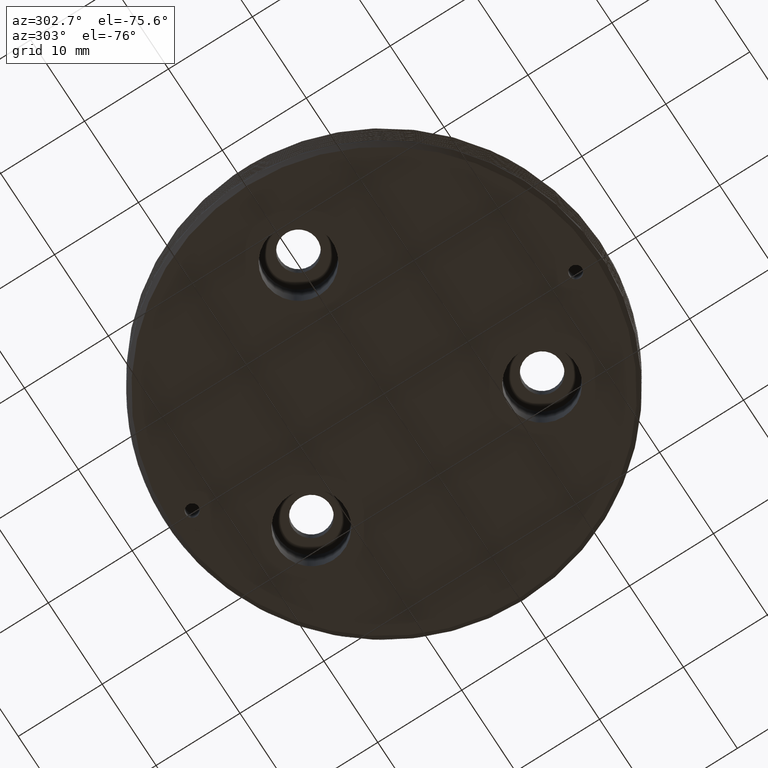
[diagram: clean part render]
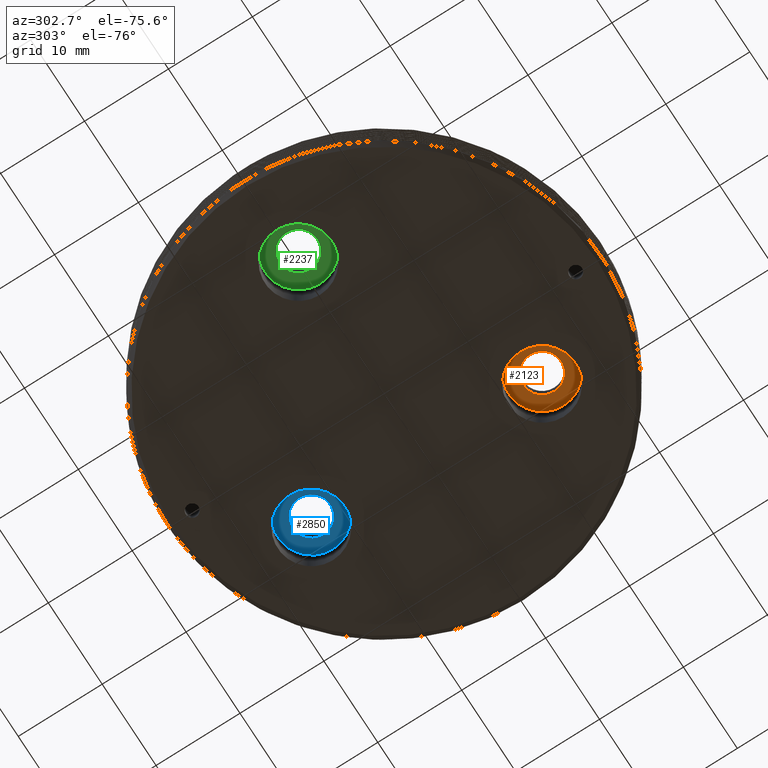
[diagram: same view with three faces highlighted in distinct colors, each labeled with its STEP entity id]
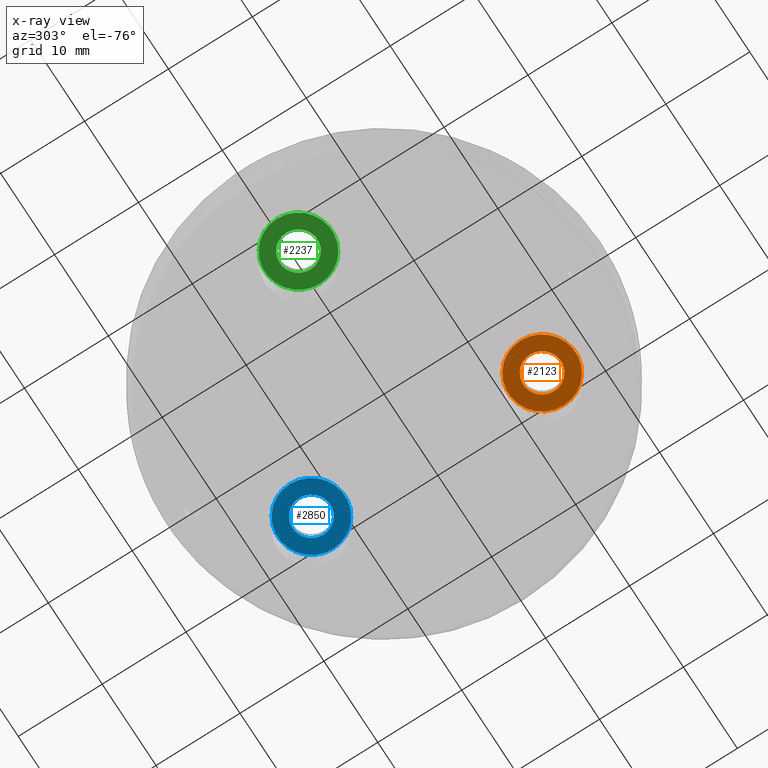
[diagram: x-ray of the same camera — body ghosted, the three highlighted faces saturated]
A machine part, auxiliary view with three faces highlighted in distinct colors.
The next image is the same camera in x-ray (body ghosted, the three faces saturated) — at least one of them is partly hidden behind the body in this view.
Their STEP definitions:

[orange] entity #2123 — the highlighted planar face has unit normal (0, 0, -1).
#28 = FACE_OUTER_BOUND ( 'NONE', #2405, .T. ) ;
#81 = VERTEX_POINT ( 'NONE', #936 ) ;
#623 = DIRECTION ( 'NONE',  ( -1.000000000000000000, 0.000000000000000000, -0.000000000000000000 ) ) ;
#801 = CARTESIAN_POINT ( 'NONE',  ( 7.937500000000065725, -13.74815328507792778, 1.499999999999999556 ) ) ;
#872 = DIRECTION ( 'NONE',  ( 0.000000000000000000, 0.000000000000000000, 1.000000000000000000 ) ) ;
#917 = CARTESIAN_POINT ( 'NONE',  ( 7.937500000000065725, -13.74815328507792778, 1.499999999999999556 ) ) ;
#936 = CARTESIAN_POINT ( 'NONE',  ( 5.687500000000065725, -13.74815328507792778, 1.499999999999999556 ) ) ;
#960 = AXIS2_PLACEMENT_3D ( 'NONE', #917, #3263, #623 ) ;
#1086 = DIRECTION ( 'NONE',  ( -0.000000000000000000, -0.000000000000000000, -1.000000000000000000 ) ) ;
#1163 = CARTESIAN_POINT ( 'NONE',  ( 7.937500000000065725, -13.74815328507792778, 1.499999999999999556 ) ) ;
#1841 = CARTESIAN_POINT ( 'NONE',  ( 3.937500000000065281, -13.74815328507792778, 1.499999999999999556 ) ) ;
#1980 = DIRECTION ( 'NONE',  ( -1.000000000000000000, 0.000000000000000000, 0.000000000000000000 ) ) ;
#2010 = ORIENTED_EDGE ( 'NONE', *, *, #3611, .T. ) ;
#2055 = DIRECTION ( 'NONE',  ( -1.000000000000000000, 0.000000000000000000, 0.000000000000000000 ) ) ;
#2089 = AXIS2_PLACEMENT_3D ( 'NONE', #801, #1086, #1980 ) ;
#2123 = ADVANCED_FACE ( 'NONE', ( #28, #2891 ), #3557, .T. ) ;
#2405 = EDGE_LOOP ( 'NONE', ( #3177 ) ) ;
#2503 = CIRCLE ( 'NONE', #2807, 2.250000000000000444 ) ;
#2531 = EDGE_LOOP ( 'NONE', ( #2010 ) ) ;
#2807 = AXIS2_PLACEMENT_3D ( 'NONE', #1163, #872, #2055 ) ;
#2891 = FACE_BOUND ( 'NONE', #2531, .T. ) ;
#3177 = ORIENTED_EDGE ( 'NONE', *, *, #3209, .T. ) ;
#3209 = EDGE_CURVE ( 'NONE', #3540, #3540, #3429, .T. ) ;
#3263 = DIRECTION ( 'NONE',  ( 0.000000000000000000, 0.000000000000000000, -1.000000000000000000 ) ) ;
#3429 = CIRCLE ( 'NONE', #2089, 4.000000000000000888 ) ;
#3540 = VERTEX_POINT ( 'NONE', #1841 ) ;
#3557 = PLANE ( 'NONE',  #960 ) ;
#3611 = EDGE_CURVE ( 'NONE', #81, #81, #2503, .T. ) ;

[blue] entity #2850 — the highlighted planar face has unit normal (0, 0, -1).
#177 = EDGE_LOOP ( 'NONE', ( #1966 ) ) ;
#245 = FACE_OUTER_BOUND ( 'NONE', #2795, .T. ) ;
#318 = CARTESIAN_POINT ( 'NONE',  ( 5.687499999999872990, 13.74815328507803969, 1.499999999999999556 ) ) ;
#528 = DIRECTION ( 'NONE',  ( -1.000000000000000000, 0.000000000000000000, -0.000000000000000000 ) ) ;
#749 = CARTESIAN_POINT ( 'NONE',  ( 7.937499999999873879, 13.74815328507803969, 1.499999999999999556 ) ) ;
#1098 = AXIS2_PLACEMENT_3D ( 'NONE', #3188, #2576, #528 ) ;
#1151 = FACE_BOUND ( 'NONE', #177, .T. ) ;
#1227 = VERTEX_POINT ( 'NONE', #318 ) ;
#1260 = EDGE_CURVE ( 'NONE', #2638, #2638, #2932, .T. ) ;
#1263 = AXIS2_PLACEMENT_3D ( 'NONE', #749, #2656, #2832 ) ;
#1398 = CARTESIAN_POINT ( 'NONE',  ( 7.937499999999873879, 13.74815328507803969, 1.499999999999999556 ) ) ;
#1829 = AXIS2_PLACEMENT_3D ( 'NONE', #1398, #2626, #2021 ) ;
#1966 = ORIENTED_EDGE ( 'NONE', *, *, #3128, .T. ) ;
#2021 = DIRECTION ( 'NONE',  ( -1.000000000000000000, 0.000000000000000000, 0.000000000000000000 ) ) ;
#2576 = DIRECTION ( 'NONE',  ( 0.000000000000000000, 0.000000000000000000, -1.000000000000000000 ) ) ;
#2626 = DIRECTION ( 'NONE',  ( 0.000000000000000000, 0.000000000000000000, 1.000000000000000000 ) ) ;
#2638 = VERTEX_POINT ( 'NONE', #3522 ) ;
#2656 = DIRECTION ( 'NONE',  ( -0.000000000000000000, -0.000000000000000000, -1.000000000000000000 ) ) ;
#2795 = EDGE_LOOP ( 'NONE', ( #3765 ) ) ;
#2832 = DIRECTION ( 'NONE',  ( -1.000000000000000000, 0.000000000000000000, 0.000000000000000000 ) ) ;
#2850 = ADVANCED_FACE ( 'NONE', ( #245, #1151 ), #2913, .T. ) ;
#2886 = CIRCLE ( 'NONE', #1829, 2.250000000000000444 ) ;
#2913 = PLANE ( 'NONE',  #1098 ) ;
#2932 = CIRCLE ( 'NONE', #1263, 4.000000000000000888 ) ;
#3128 = EDGE_CURVE ( 'NONE', #1227, #1227, #2886, .T. ) ;
#3188 = CARTESIAN_POINT ( 'NONE',  ( 7.937499999999873879, 13.74815328507803969, 1.499999999999999556 ) ) ;
#3522 = CARTESIAN_POINT ( 'NONE',  ( 3.937499999999872546, 13.74815328507803969, 1.499999999999999556 ) ) ;
#3765 = ORIENTED_EDGE ( 'NONE', *, *, #1260, .T. ) ;

[green] entity #2237 — the highlighted planar face has unit normal (0, 0, -1).
#473 = CIRCLE ( 'NONE', #715, 4.000000000000000000 ) ;
#486 = ORIENTED_EDGE ( 'NONE', *, *, #2918, .T. ) ;
#505 = DIRECTION ( 'NONE',  ( -1.000000000000000000, 0.000000000000000000, 0.000000000000000000 ) ) ;
#715 = AXIS2_PLACEMENT_3D ( 'NONE', #3479, #3459, #2319 ) ;
#850 = CARTESIAN_POINT ( 'NONE',  ( -15.87500000000000355, -3.049318610115481221E-16, 1.499999999999999556 ) ) ;
#852 = VERTEX_POINT ( 'NONE', #2925 ) ;
#1102 = CARTESIAN_POINT ( 'NONE',  ( -19.87500000000000355, -3.049318610115481221E-16, 1.499999999999999556 ) ) ;
#1143 = FACE_OUTER_BOUND ( 'NONE', #1543, .T. ) ;
#1200 = EDGE_CURVE ( 'NONE', #852, #852, #2388, .T. ) ;
#1383 = EDGE_LOOP ( 'NONE', ( #1671 ) ) ;
#1543 = EDGE_LOOP ( 'NONE', ( #486 ) ) ;
#1660 = DIRECTION ( 'NONE',  ( 0.000000000000000000, 0.000000000000000000, 1.000000000000000000 ) ) ;
#1671 = ORIENTED_EDGE ( 'NONE', *, *, #1200, .T. ) ;
#2237 = ADVANCED_FACE ( 'NONE', ( #1143, #2327 ), #3488, .T. ) ;
#2319 = DIRECTION ( 'NONE',  ( -1.000000000000000000, 0.000000000000000000, 0.000000000000000000 ) ) ;
#2327 = FACE_BOUND ( 'NONE', #1383, .T. ) ;
#2388 = CIRCLE ( 'NONE', #3112, 2.249999999999998668 ) ;
#2607 = VERTEX_POINT ( 'NONE', #1102 ) ;
#2907 = DIRECTION ( 'NONE',  ( -1.000000000000000000, 0.000000000000000000, -0.000000000000000000 ) ) ;
#2918 = EDGE_CURVE ( 'NONE', #2607, #2607, #473, .T. ) ;
#2925 = CARTESIAN_POINT ( 'NONE',  ( -18.12500000000000355, -3.049318610115481221E-16, 1.499999999999999556 ) ) ;
#3112 = AXIS2_PLACEMENT_3D ( 'NONE', #3145, #1660, #505 ) ;
#3145 = CARTESIAN_POINT ( 'NONE',  ( -15.87500000000000355, -3.049318610115481221E-16, 1.499999999999999556 ) ) ;
#3197 = DIRECTION ( 'NONE',  ( 0.000000000000000000, 0.000000000000000000, -1.000000000000000000 ) ) ;
#3240 = AXIS2_PLACEMENT_3D ( 'NONE', #850, #3197, #2907 ) ;
#3459 = DIRECTION ( 'NONE',  ( -0.000000000000000000, -0.000000000000000000, -1.000000000000000000 ) ) ;
#3479 = CARTESIAN_POINT ( 'NONE',  ( -15.87500000000000355, -3.049318610115481221E-16, 1.499999999999999556 ) ) ;
#3488 = PLANE ( 'NONE',  #3240 ) ;